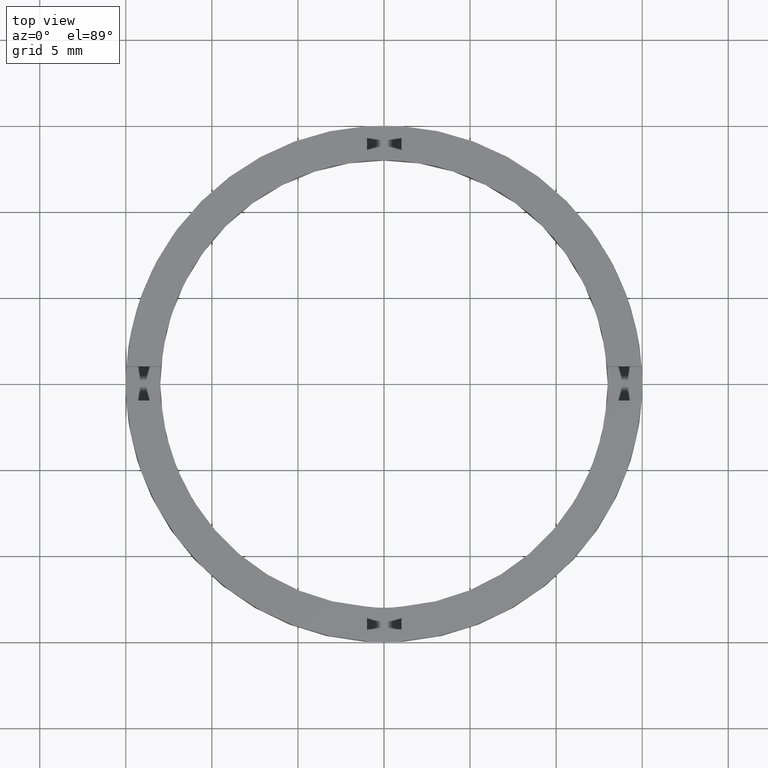
[diagram: clean part render]
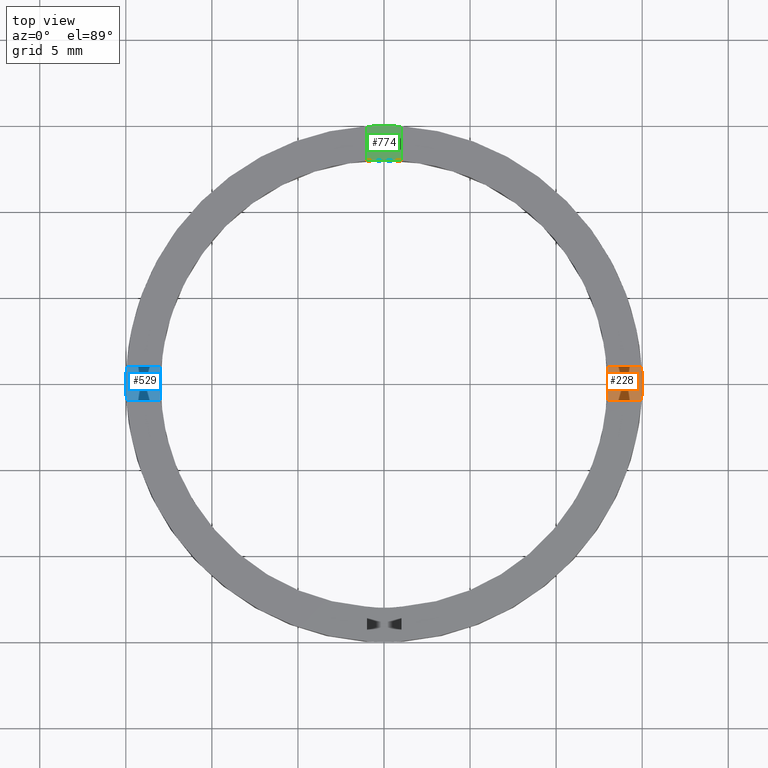
[diagram: same view with three faces highlighted in distinct colors, each labeled with its STEP entity id]
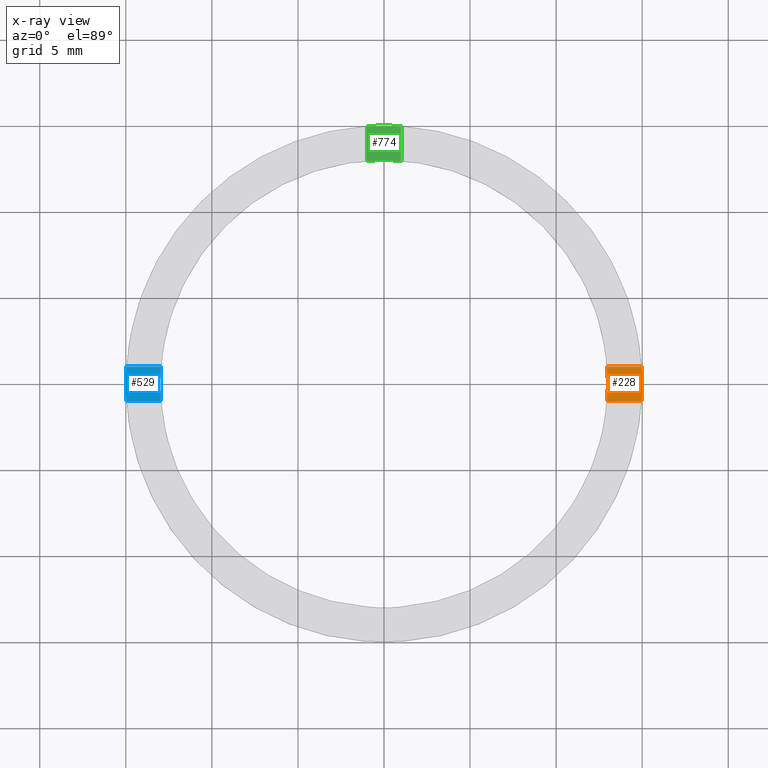
[diagram: x-ray of the same camera — body ghosted, the three highlighted faces saturated]
A machine part, top view with three faces highlighted in distinct colors.
The next image is the same camera in x-ray (body ghosted, the three faces saturated) — at least one of them is partly hidden behind the body in this view.
Their STEP definitions:

[orange] entity #228 — the highlighted planar face has unit normal (0, 0, 1).
#2 = EDGE_CURVE ( 'NONE', #150, #445, #635, .T. ) ;
#5 = DIRECTION ( 'NONE',  ( 1.000000000000000000, 0.000000000000000000, 0.000000000000000000 ) ) ;
#6 = CARTESIAN_POINT ( 'NONE',  ( 14.96662954709577775, 0.9999999999998406830, 1.500000000000000000 ) ) ;
#10 = DIRECTION ( 'NONE',  ( 1.000000000000000000, 4.336808689942017736E-17, 0.000000000000000000 ) ) ;
#17 = DIRECTION ( 'NONE',  ( 0.000000000000000000, 0.000000000000000000, 1.000000000000000000 ) ) ;
#38 = VECTOR ( 'NONE', #10, 1000.000000000000000 ) ;
#49 = CIRCLE ( 'NONE', #449, 13.00000000000000178 ) ;
#70 = CARTESIAN_POINT ( 'NONE',  ( 0.000000000000000000, 0.000000000000000000, 1.500000000000000000 ) ) ;
#72 = DIRECTION ( 'NONE',  ( 1.000000000000000000, 0.000000000000000000, -0.000000000000000000 ) ) ;
#74 = DIRECTION ( 'NONE',  ( 1.000000000000000000, 0.000000000000000000, 0.000000000000000000 ) ) ;
#85 = CIRCLE ( 'NONE', #119, 15.00000000000000000 ) ;
#91 = CIRCLE ( 'NONE', #647, 15.00000000000000000 ) ;
#108 = ORIENTED_EDGE ( 'NONE', *, *, #2, .F. ) ;
#110 = ORIENTED_EDGE ( 'NONE', *, *, #512, .F. ) ;
#119 = AXIS2_PLACEMENT_3D ( 'NONE', #70, #284, #319 ) ;
#150 = VERTEX_POINT ( 'NONE', #620 ) ;
#151 = ORIENTED_EDGE ( 'NONE', *, *, #316, .T. ) ;
#159 = VERTEX_POINT ( 'NONE', #773 ) ;
#160 = CARTESIAN_POINT ( 'NONE',  ( 0.000000000000000000, 0.000000000000000000, 1.500000000000000000 ) ) ;
#172 = DIRECTION ( 'NONE',  ( 0.000000000000000000, 0.000000000000000000, 1.000000000000000000 ) ) ;
#217 = ORIENTED_EDGE ( 'NONE', *, *, #324, .T. ) ;
#228 = ADVANCED_FACE ( 'NONE', ( #351 ), #373, .T. ) ;
#239 = CARTESIAN_POINT ( 'NONE',  ( 14.96662954709575466, -1.000000000000159428, 1.500000000000000000 ) ) ;
#255 = CARTESIAN_POINT ( 'NONE',  ( 0.000000000000000000, 0.000000000000000000, 1.500000000000000000 ) ) ;
#278 = DIRECTION ( 'NONE',  ( 1.000000000000000000, 0.000000000000000000, 0.000000000000000000 ) ) ;
#284 = DIRECTION ( 'NONE',  ( 0.000000000000000000, 0.000000000000000000, 1.000000000000000000 ) ) ;
#316 = EDGE_CURVE ( 'NONE', #470, #414, #597, .T. ) ;
#319 = DIRECTION ( 'NONE',  ( 1.000000000000000000, 0.000000000000000000, 0.000000000000000000 ) ) ;
#324 = EDGE_CURVE ( 'NONE', #709, #159, #91, .T. ) ;
#333 = CARTESIAN_POINT ( 'NONE',  ( 4.999999999999993783, -1.000000000000159872, 1.500000000000000000 ) ) ;
#347 = VECTOR ( 'NONE', #523, 1000.000000000000000 ) ;
#351 = FACE_OUTER_BOUND ( 'NONE', #712, .T. ) ;
#373 = PLANE ( 'NONE',  #659 ) ;
#388 = CARTESIAN_POINT ( 'NONE',  ( 13.00000000000000178, 1.592040838891559293E-15, 1.500000000000000000 ) ) ;
#401 = EDGE_CURVE ( 'NONE', #159, #470, #85, .T. ) ;
#414 = VERTEX_POINT ( 'NONE', #631 ) ;
#437 = ORIENTED_EDGE ( 'NONE', *, *, #711, .T. ) ;
#445 = VERTEX_POINT ( 'NONE', #388 ) ;
#449 = AXIS2_PLACEMENT_3D ( 'NONE', #641, #657, #278 ) ;
#470 = VERTEX_POINT ( 'NONE', #6 ) ;
#497 = CARTESIAN_POINT ( 'NONE',  ( 4.999999999999993783, 0.9999999999998402389, 1.500000000000000000 ) ) ;
#512 = EDGE_CURVE ( 'NONE', #445, #414, #49, .T. ) ;
#523 = DIRECTION ( 'NONE',  ( -1.000000000000000000, -4.336808689942017736E-17, -0.000000000000000000 ) ) ;
#546 = LINE ( 'NONE', #333, #38 ) ;
#566 = DIRECTION ( 'NONE',  ( 0.000000000000000000, 0.000000000000000000, 1.000000000000000000 ) ) ;
#597 = LINE ( 'NONE', #497, #347 ) ;
#620 = CARTESIAN_POINT ( 'NONE',  ( 12.96148139681570832, -1.000000000000159428, 1.500000000000000000 ) ) ;
#631 = CARTESIAN_POINT ( 'NONE',  ( 12.96148139681573497, 0.9999999999998406830, 1.500000000000000000 ) ) ;
#635 = CIRCLE ( 'NONE', #775, 13.00000000000000178 ) ;
#641 = CARTESIAN_POINT ( 'NONE',  ( 0.000000000000000000, 0.000000000000000000, 1.500000000000000000 ) ) ;
#647 = AXIS2_PLACEMENT_3D ( 'NONE', #160, #172, #5 ) ;
#657 = DIRECTION ( 'NONE',  ( 0.000000000000000000, 0.000000000000000000, 1.000000000000000000 ) ) ;
#659 = AXIS2_PLACEMENT_3D ( 'NONE', #255, #566, #72 ) ;
#671 = ORIENTED_EDGE ( 'NONE', *, *, #401, .T. ) ;
#709 = VERTEX_POINT ( 'NONE', #239 ) ;
#711 = EDGE_CURVE ( 'NONE', #150, #709, #546, .T. ) ;
#712 = EDGE_LOOP ( 'NONE', ( #217, #671, #151, #110, #108, #437 ) ) ;
#769 = CARTESIAN_POINT ( 'NONE',  ( 0.000000000000000000, 0.000000000000000000, 1.500000000000000000 ) ) ;
#773 = CARTESIAN_POINT ( 'NONE',  ( 15.00000000000000000, 1.836970198721029589E-15, 1.500000000000000000 ) ) ;
#775 = AXIS2_PLACEMENT_3D ( 'NONE', #769, #17, #74 ) ;

[blue] entity #529 — the highlighted planar face has unit normal (0, 0, 1).
#3 = EDGE_CURVE ( 'NONE', #166, #416, #114, .T. ) ;
#8 = VERTEX_POINT ( 'NONE', #508 ) ;
#21 = CARTESIAN_POINT ( 'NONE',  ( -5.000000000000184741, -1.000000000000021316, 1.500000000000000000 ) ) ;
#34 = CARTESIAN_POINT ( 'NONE',  ( 0.000000000000000000, 0.000000000000000000, 1.500000000000000000 ) ) ;
#76 = DIRECTION ( 'NONE',  ( 0.000000000000000000, 0.000000000000000000, 1.000000000000000000 ) ) ;
#95 = CARTESIAN_POINT ( 'NONE',  ( -12.96148139681571898, -1.000000000000022649, 1.500000000000000000 ) ) ;
#96 = CIRCLE ( 'NONE', #100, 13.00000000000000178 ) ;
#100 = AXIS2_PLACEMENT_3D ( 'NONE', #572, #771, #627 ) ;
#103 = CIRCLE ( 'NONE', #489, 15.00000000000000000 ) ;
#105 = CIRCLE ( 'NONE', #230, 13.00000000000000178 ) ;
#114 = LINE ( 'NONE', #21, #375 ) ;
#121 = EDGE_CURVE ( 'NONE', #485, #416, #96, .T. ) ;
#161 = ORIENTED_EDGE ( 'NONE', *, *, #3, .T. ) ;
#166 = VERTEX_POINT ( 'NONE', #454 ) ;
#191 = DIRECTION ( 'NONE',  ( 1.000000000000000000, 0.000000000000000000, 0.000000000000000000 ) ) ;
#218 = ORIENTED_EDGE ( 'NONE', *, *, #390, .T. ) ;
#222 = CARTESIAN_POINT ( 'NONE',  ( -12.96148139681572253, 0.9999999999999774625, 1.500000000000000000 ) ) ;
#226 = DIRECTION ( 'NONE',  ( 1.000000000000000000, 0.000000000000000000, 0.000000000000000000 ) ) ;
#230 = AXIS2_PLACEMENT_3D ( 'NONE', #34, #610, #687 ) ;
#233 = PLANE ( 'NONE',  #778 ) ;
#245 = EDGE_CURVE ( 'NONE', #722, #8, #339, .T. ) ;
#261 = EDGE_CURVE ( 'NONE', #722, #485, #105, .T. ) ;
#272 = CARTESIAN_POINT ( 'NONE',  ( -15.00000000000000000, 0.000000000000000000, 1.500000000000000000 ) ) ;
#304 = FACE_OUTER_BOUND ( 'NONE', #743, .T. ) ;
#335 = CARTESIAN_POINT ( 'NONE',  ( 0.000000000000000000, 0.000000000000000000, 1.500000000000000000 ) ) ;
#339 = LINE ( 'NONE', #559, #608 ) ;
#372 = DIRECTION ( 'NONE',  ( 1.000000000000000000, 1.734723475976807094E-16, -0.000000000000000000 ) ) ;
#375 = VECTOR ( 'NONE', #372, 1000.000000000000000 ) ;
#390 = EDGE_CURVE ( 'NONE', #409, #166, #103, .T. ) ;
#409 = VERTEX_POINT ( 'NONE', #272 ) ;
#411 = EDGE_CURVE ( 'NONE', #8, #409, #623, .T. ) ;
#416 = VERTEX_POINT ( 'NONE', #95 ) ;
#451 = AXIS2_PLACEMENT_3D ( 'NONE', #573, #76, #226 ) ;
#454 = CARTESIAN_POINT ( 'NONE',  ( -14.96662954709576354, -1.000000000000023093, 1.500000000000000000 ) ) ;
#474 = ORIENTED_EDGE ( 'NONE', *, *, #411, .T. ) ;
#478 = ORIENTED_EDGE ( 'NONE', *, *, #261, .F. ) ;
#485 = VERTEX_POINT ( 'NONE', #528 ) ;
#489 = AXIS2_PLACEMENT_3D ( 'NONE', #335, #748, #191 ) ;
#508 = CARTESIAN_POINT ( 'NONE',  ( -14.96662954709576709, 0.9999999999999770184, 1.500000000000000000 ) ) ;
#524 = CARTESIAN_POINT ( 'NONE',  ( 0.000000000000000000, 0.000000000000000000, 1.500000000000000000 ) ) ;
#528 = CARTESIAN_POINT ( 'NONE',  ( -13.00000000000000178, 0.000000000000000000, 1.500000000000000000 ) ) ;
#529 = ADVANCED_FACE ( 'NONE', ( #304 ), #233, .T. ) ;
#559 = CARTESIAN_POINT ( 'NONE',  ( -5.000000000000184741, 0.9999999999999787947, 1.500000000000000000 ) ) ;
#572 = CARTESIAN_POINT ( 'NONE',  ( 0.000000000000000000, 0.000000000000000000, 1.500000000000000000 ) ) ;
#573 = CARTESIAN_POINT ( 'NONE',  ( 0.000000000000000000, 0.000000000000000000, 1.500000000000000000 ) ) ;
#587 = DIRECTION ( 'NONE',  ( 0.000000000000000000, 0.000000000000000000, 1.000000000000000000 ) ) ;
#608 = VECTOR ( 'NONE', #617, 1000.000000000000000 ) ;
#610 = DIRECTION ( 'NONE',  ( 0.000000000000000000, 0.000000000000000000, 1.000000000000000000 ) ) ;
#617 = DIRECTION ( 'NONE',  ( -1.000000000000000000, -1.734723475976807094E-16, 0.000000000000000000 ) ) ;
#623 = CIRCLE ( 'NONE', #451, 15.00000000000000000 ) ;
#627 = DIRECTION ( 'NONE',  ( 1.000000000000000000, 0.000000000000000000, 0.000000000000000000 ) ) ;
#686 = ORIENTED_EDGE ( 'NONE', *, *, #245, .T. ) ;
#687 = DIRECTION ( 'NONE',  ( 1.000000000000000000, 0.000000000000000000, 0.000000000000000000 ) ) ;
#702 = ORIENTED_EDGE ( 'NONE', *, *, #121, .F. ) ;
#722 = VERTEX_POINT ( 'NONE', #222 ) ;
#741 = DIRECTION ( 'NONE',  ( 1.000000000000000000, 0.000000000000000000, -0.000000000000000000 ) ) ;
#743 = EDGE_LOOP ( 'NONE', ( #474, #218, #161, #702, #478, #686 ) ) ;
#748 = DIRECTION ( 'NONE',  ( 0.000000000000000000, 0.000000000000000000, 1.000000000000000000 ) ) ;
#771 = DIRECTION ( 'NONE',  ( 0.000000000000000000, 0.000000000000000000, 1.000000000000000000 ) ) ;
#778 = AXIS2_PLACEMENT_3D ( 'NONE', #524, #587, #741 ) ;

[green] entity #774 — the highlighted planar face has unit normal (0, -0, 1).
#4 = ORIENTED_EDGE ( 'NONE', *, *, #644, .T. ) ;
#13 = ORIENTED_EDGE ( 'NONE', *, *, #596, .F. ) ;
#45 = FACE_OUTER_BOUND ( 'NONE', #465, .T. ) ;
#52 = CARTESIAN_POINT ( 'NONE',  ( 0.9999999999999751310, 14.96662954709576709, 1.500000000000000000 ) ) ;
#59 = AXIS2_PLACEMENT_3D ( 'NONE', #522, #537, #592 ) ;
#90 = PLANE ( 'NONE',  #59 ) ;
#118 = DIRECTION ( 'NONE',  ( -0.000000000000000000, -1.000000000000000000, -0.000000000000000000 ) ) ;
#188 = DIRECTION ( 'NONE',  ( 0.000000000000000000, -0.000000000000000000, 1.000000000000000000 ) ) ;
#192 = VERTEX_POINT ( 'NONE', #753 ) ;
#209 = VERTEX_POINT ( 'NONE', #450 ) ;
#270 = AXIS2_PLACEMENT_3D ( 'NONE', #365, #188, #663 ) ;
#283 = CIRCLE ( 'NONE', #270, 13.00000000000000178 ) ;
#285 = LINE ( 'NONE', #575, #540 ) ;
#297 = VECTOR ( 'NONE', #118, 1000.000000000000000 ) ;
#322 = DIRECTION ( 'NONE',  ( 0.000000000000000000, -0.000000000000000000, 1.000000000000000000 ) ) ;
#365 = CARTESIAN_POINT ( 'NONE',  ( 0.000000000000000000, 0.000000000000000000, 1.500000000000000000 ) ) ;
#434 = CARTESIAN_POINT ( 'NONE',  ( -1.000000000000024869, 4.999999999999999112, 1.500000000000000000 ) ) ;
#440 = VERTEX_POINT ( 'NONE', #618 ) ;
#450 = CARTESIAN_POINT ( 'NONE',  ( -1.000000000000024869, 12.96148139681571898, 1.500000000000000000 ) ) ;
#465 = EDGE_LOOP ( 'NONE', ( #679, #519, #13, #4 ) ) ;
#475 = DIRECTION ( 'NONE',  ( 0.000000000000000000, 1.000000000000000000, 0.000000000000000000 ) ) ;
#477 = DIRECTION ( 'NONE',  ( 1.000000000000000000, 0.000000000000000000, 0.000000000000000000 ) ) ;
#493 = CARTESIAN_POINT ( 'NONE',  ( 0.000000000000000000, 0.000000000000000000, 1.500000000000000000 ) ) ;
#519 = ORIENTED_EDGE ( 'NONE', *, *, #622, .T. ) ;
#522 = CARTESIAN_POINT ( 'NONE',  ( 0.000000000000000000, 0.000000000000000000, 1.500000000000000000 ) ) ;
#533 = LINE ( 'NONE', #434, #297 ) ;
#537 = DIRECTION ( 'NONE',  ( 0.000000000000000000, -0.000000000000000000, 1.000000000000000000 ) ) ;
#540 = VECTOR ( 'NONE', #475, 1000.000000000000000 ) ;
#549 = CIRCLE ( 'NONE', #757, 15.00000000000000000 ) ;
#575 = CARTESIAN_POINT ( 'NONE',  ( 0.9999999999999751310, 4.999999999999999112, 1.500000000000000000 ) ) ;
#592 = DIRECTION ( 'NONE',  ( 1.000000000000000000, 0.000000000000000000, -0.000000000000000000 ) ) ;
#596 = EDGE_CURVE ( 'NONE', #440, #209, #283, .T. ) ;
#618 = CARTESIAN_POINT ( 'NONE',  ( 0.9999999999999751310, 12.96148139681572431, 1.500000000000000000 ) ) ;
#622 = EDGE_CURVE ( 'NONE', #192, #209, #533, .T. ) ;
#644 = EDGE_CURVE ( 'NONE', #440, #705, #285, .T. ) ;
#651 = EDGE_CURVE ( 'NONE', #705, #192, #549, .T. ) ;
#663 = DIRECTION ( 'NONE',  ( 1.000000000000000000, 0.000000000000000000, 0.000000000000000000 ) ) ;
#679 = ORIENTED_EDGE ( 'NONE', *, *, #651, .T. ) ;
#705 = VERTEX_POINT ( 'NONE', #52 ) ;
#753 = CARTESIAN_POINT ( 'NONE',  ( -1.000000000000024869, 14.96662954709576354, 1.500000000000000000 ) ) ;
#757 = AXIS2_PLACEMENT_3D ( 'NONE', #493, #322, #477 ) ;
#774 = ADVANCED_FACE ( 'NONE', ( #45 ), #90, .T. ) ;